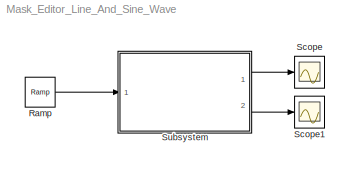
MODEL Mask_Editor_Line_And_Sine_Wave
KIND model
BLOCK [Reference] Ramp  REF=simulink/Sources/Ramp
  InitialOutput = 3
  Ports = [0, 1]
  SID = 13
  SourceBlock = simulink/Sources/Ramp
  SourceProductBaseCode = SL
  SourceProductName = Simulink
  SourceType = Ramp
  VectorParams1D = on
  slope = 10
  start = 0
BLOCK [Scope] Scope
  Floating = off
  NumInputPorts = 1
  Ports = [1]
  SID = 11
  ScopeSpecificationString = Simulink.scopes.TimeScopeBlockCfg('CurrentConfiguration', extmgr.ConfigurationSet(extmgr.Configuration('Core','General UI',true,'FigureColor',[1 1 1]),extmgr.Configuration('Core','Source UI',true),extmgr.Configuration('Sources','WiredSimulink',true),extmgr.Configuration('Visuals','Time Domain',true,'SerializedDisplays',{struct('MinYLimReal','3.875','MaxYLimReal','5.125','YLabelReal','','MinYLimMag...<+1543ch>
BLOCK [Scope] Scope1
  Floating = off
  NumInputPorts = 1
  Ports = [1]
  SID = 12
  ScopeSpecificationString = Simulink.scopes.TimeScopeBlockCfg('CurrentConfiguration', extmgr.ConfigurationSet(extmgr.Configuration('Core','General UI',true,'FigureColor',[1 1 1]),extmgr.Configuration('Core','Source UI',true),extmgr.Configuration('Sources','WiredSimulink',true,'DataLoggingVariableName','ScopeData1'),extmgr.Configuration('Visuals','Time Domain',true,'SerializedDisplays',{struct('MinYLimReal','-451.75185','MaxY...<+1603ch>
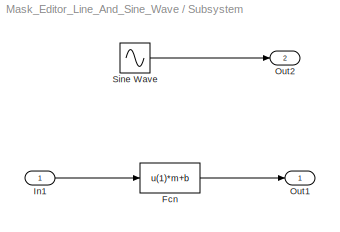
BLOCK [SubSystem] Subsystem
  Ports = [1, 2]
  RequestExecContextInheritance = off
  SID = 2
BLOCK [Fcn] Subsystem/Fcn
  Expr = u(1)*m+b
  SID = 8
BLOCK [Inport] Subsystem/In1
  IconDisplay = Port number
  SID = 3
BLOCK [Outport] Subsystem/Out1
  IconDisplay = Port number
  SID = 4
BLOCK [Outport] Subsystem/Out2
  IconDisplay = Port number
  Port = 2
  SID = 9
BLOCK [Sin] Subsystem/Sine Wave
  Amplitude = A
  Frequency = 2*pi*f
  Ports = [0, 1]
  SID = 1
  SampleTime = 0
LINE Ramp:1 -> Subsystem:1
LINE Subsystem/Fcn:1 -> Subsystem/Out1:1
LINE Subsystem/In1:1 -> Subsystem/Fcn:1
LINE Subsystem/Sine Wave:1 -> Subsystem/Out2:1
LINE Subsystem:1 -> Scope:1
LINE Subsystem:2 -> Scope1:1
